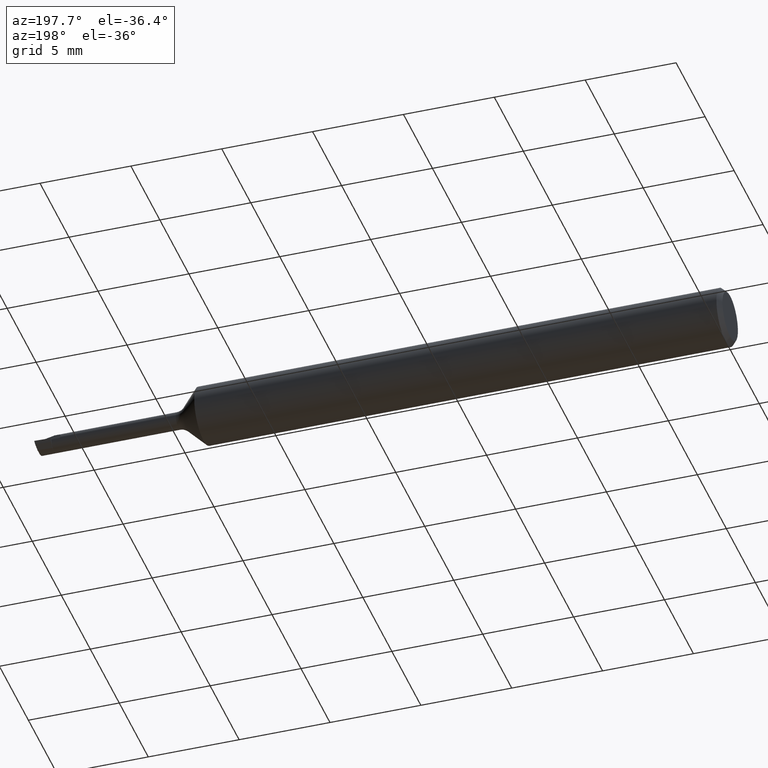
[diagram: clean part render]
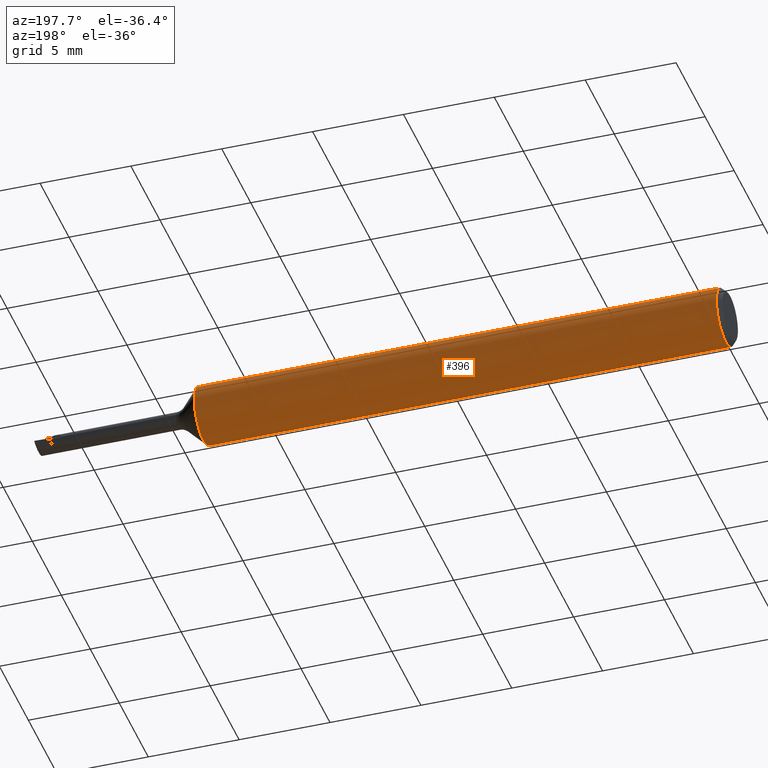
[diagram: same view with one face highlighted and labeled with its STEP entity id]
A machine part, auxiliary view. The second image highlights one B-rep face of the part: STEP entity #396.
In plain terms, the highlighted cylindrical surface (edge-blend (fillet) strip) has radius 1.5837 mm, axis along (-1, -0, -0).
Its self-contained STEP definition (entity closure, byte-faithful):
#19 = ORIENTED_EDGE ( 'NONE', *, *, #484, .T. ) ;
#21 = ORIENTED_EDGE ( 'NONE', *, *, #55, .T. ) ;
#22 = DIRECTION ( 'NONE',  ( 1.000000000000000000, 0.000000000000000000, 0.000000000000000000 ) ) ;
#25 = CYLINDRICAL_SURFACE ( 'NONE', #291, 0.06235000000000000264 ) ;
#28 = DIRECTION ( 'NONE',  ( 1.000000000000000000, 0.000000000000000000, 0.000000000000000000 ) ) ;
#30 = CIRCLE ( 'NONE', #312, 0.06235000000000000264 ) ;
#55 = EDGE_CURVE ( 'NONE', #426, #522, #345, .T. ) ;
#68 = DIRECTION ( 'NONE',  ( 0.000000000000000000, 0.000000000000000000, -1.000000000000000000 ) ) ;
#69 = ORIENTED_EDGE ( 'NONE', *, *, #275, .T. ) ;
#75 = EDGE_CURVE ( 'NONE', #522, #516, #30, .T. ) ;
#77 = DIRECTION ( 'NONE',  ( -1.000000000000000000, -0.000000000000000000, -0.000000000000000000 ) ) ;
#101 = DIRECTION ( 'NONE',  ( -1.000000000000000000, -0.000000000000000000, -0.000000000000000000 ) ) ;
#110 = AXIS2_PLACEMENT_3D ( 'NONE', #471, #28, #335 ) ;
#112 = CARTESIAN_POINT ( 'NONE',  ( 0.000000000000000000, -0.03386738844375220686, 0.05235000000000000070 ) ) ;
#113 = VECTOR ( 'NONE', #515, 39.37007874015748143 ) ;
#138 = EDGE_CURVE ( 'NONE', #516, #170, #293, .T. ) ;
#163 = CARTESIAN_POINT ( 'NONE',  ( 1.141150000000000109, 0.000000000000000000, 0.000000000000000000 ) ) ;
#166 = CARTESIAN_POINT ( 'NONE',  ( 0.009999999999999887451, 0.000000000000000000, -0.06235000000000000264 ) ) ;
#170 = VERTEX_POINT ( 'NONE', #559 ) ;
#177 = VECTOR ( 'NONE', #101, 39.37007874015748143 ) ;
#185 = CARTESIAN_POINT ( 'NONE',  ( 1.141150000000000109, 0.03386738844375220686, 0.05235000000000000070 ) ) ;
#187 = EDGE_CURVE ( 'NONE', #170, #287, #261, .T. ) ;
#227 = VERTEX_POINT ( 'NONE', #410 ) ;
#230 = ORIENTED_EDGE ( 'NONE', *, *, #75, .T. ) ;
#261 = CIRCLE ( 'NONE', #308, 0.06235000000000000264 ) ;
#275 = EDGE_CURVE ( 'NONE', #227, #426, #458, .T. ) ;
#280 = DIRECTION ( 'NONE',  ( 0.000000000000000000, 0.000000000000000000, 1.000000000000000000 ) ) ;
#285 = CARTESIAN_POINT ( 'NONE',  ( 0.000000000000000000, 0.000000000000000000, 0.000000000000000000 ) ) ;
#287 = VERTEX_POINT ( 'NONE', #166 ) ;
#291 = AXIS2_PLACEMENT_3D ( 'NONE', #285, #77, #280 ) ;
#293 = LINE ( 'NONE', #112, #177 ) ;
#303 = DIRECTION ( 'NONE',  ( -1.000000000000000000, -0.000000000000000000, -0.000000000000000000 ) ) ;
#308 = AXIS2_PLACEMENT_3D ( 'NONE', #405, #22, #68 ) ;
#310 = EDGE_LOOP ( 'NONE', ( #21, #230, #407, #457, #19, #69 ) ) ;
#312 = AXIS2_PLACEMENT_3D ( 'NONE', #163, #442, #592 ) ;
#313 = CARTESIAN_POINT ( 'NONE',  ( 0.000000000000000000, 0.03386738844375220686, 0.05235000000000000070 ) ) ;
#335 = DIRECTION ( 'NONE',  ( 0.000000000000000000, 0.000000000000000000, -1.000000000000000000 ) ) ;
#345 = CIRCLE ( 'NONE', #571, 0.06235000000000000264 ) ;
#394 = DIRECTION ( 'NONE',  ( 0.000000000000000000, 0.000000000000000000, 1.000000000000000000 ) ) ;
#396 = ADVANCED_FACE ( 'NONE', ( #475 ), #25, .T. ) ;
#405 = CARTESIAN_POINT ( 'NONE',  ( 0.009999999999999887451, 0.000000000000000000, 0.000000000000000000 ) ) ;
#407 = ORIENTED_EDGE ( 'NONE', *, *, #138, .T. ) ;
#410 = CARTESIAN_POINT ( 'NONE',  ( 0.009999999999999890921, 0.03386738844375217911, 0.05235000000000001458 ) ) ;
#426 = VERTEX_POINT ( 'NONE', #185 ) ;
#442 = DIRECTION ( 'NONE',  ( -1.000000000000000000, -0.000000000000000000, -0.000000000000000000 ) ) ;
#457 = ORIENTED_EDGE ( 'NONE', *, *, #187, .T. ) ;
#458 = LINE ( 'NONE', #313, #113 ) ;
#471 = CARTESIAN_POINT ( 'NONE',  ( 0.009999999999999887451, 0.000000000000000000, 0.000000000000000000 ) ) ;
#475 = FACE_OUTER_BOUND ( 'NONE', #310, .T. ) ;
#484 = EDGE_CURVE ( 'NONE', #287, #227, #553, .T. ) ;
#515 = DIRECTION ( 'NONE',  ( 1.000000000000000000, 0.000000000000000000, 0.000000000000000000 ) ) ;
#516 = VERTEX_POINT ( 'NONE', #587 ) ;
#522 = VERTEX_POINT ( 'NONE', #594 ) ;
#553 = CIRCLE ( 'NONE', #110, 0.06235000000000000264 ) ;
#555 = CARTESIAN_POINT ( 'NONE',  ( 1.141150000000000109, 0.000000000000000000, 0.000000000000000000 ) ) ;
#559 = CARTESIAN_POINT ( 'NONE',  ( 0.01000000000000840841, -0.03386738844395137393, 0.05235000000000001458 ) ) ;
#571 = AXIS2_PLACEMENT_3D ( 'NONE', #555, #303, #394 ) ;
#587 = CARTESIAN_POINT ( 'NONE',  ( 1.141150000000000109, -0.03386738844375220686, 0.05235000000000000070 ) ) ;
#592 = DIRECTION ( 'NONE',  ( 0.000000000000000000, 0.000000000000000000, 1.000000000000000000 ) ) ;
#594 = CARTESIAN_POINT ( 'NONE',  ( 1.141150000000000109, 7.635672792683746671E-18, -0.06235000000000000264 ) ) ;